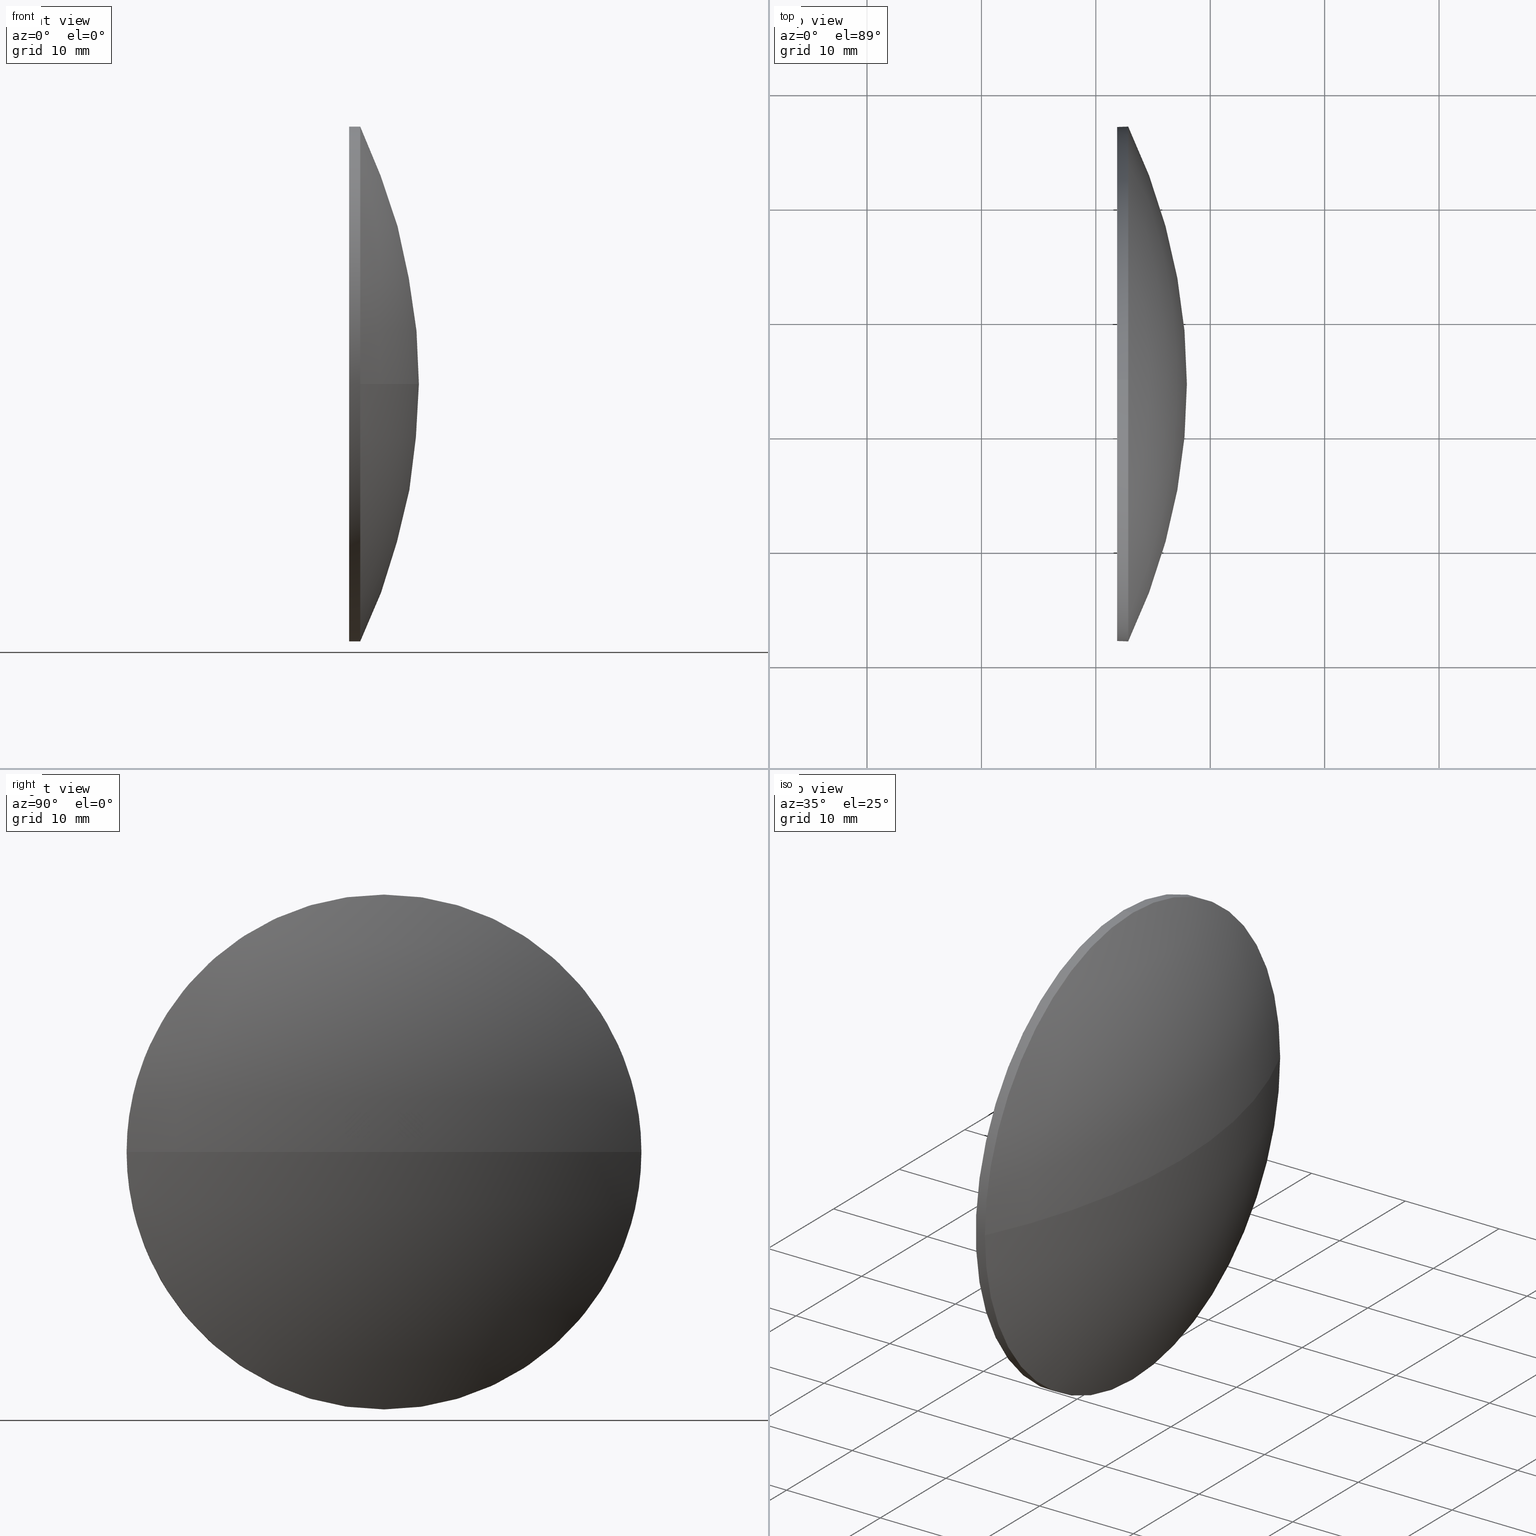
[diagram: canonical four-view strip — front | top / right | iso, engineering-drawing reading convention]
A machine part, canonical four-view strip (front | top / right | iso — engineering-drawing reading convention). The complete STEP part file that produces these views, byte-faithful:
ISO-10303-21;
HEADER;
FILE_DESCRIPTION (( 'STEP AP214' ),
    '1' );
FILE_NAME ('100236.STEP',
    '2019-05-28T06:23:38',
    ( '' ),
    ( '' ),
    'SwSTEP 2.0',
    'SolidWorks 2016',
    '' );
FILE_SCHEMA (( 'AUTOMOTIVE_DESIGN' ));
ENDSEC;

DATA;
#1 = UNCERTAINTY_MEASURE_WITH_UNIT (LENGTH_MEASURE( 1.000000000000000100E-005 ), #171, 'distance_accuracy_value', 'NONE');
#2 = CARTESIAN_POINT ( 'NONE',  ( 192.8294665386367500, -255.6056703500554500, 0.0000000000000000000 ) ) ;
#3 = PRESENTATION_LAYER_ASSIGNMENT (  '', '', ( #137 ) ) ;
#4 = DIRECTION ( 'NONE',  ( 0.0000000000000000000, 0.0000000000000000000, 1.000000000000000000 ) ) ;
#5 =( GEOMETRIC_REPRESENTATION_CONTEXT ( 3 ) GLOBAL_UNCERTAINTY_ASSIGNED_CONTEXT ( ( #11 ) ) GLOBAL_UNIT_ASSIGNED_CONTEXT ( ( #111, #87, #128 ) ) REPRESENTATION_CONTEXT ( 'NONE', 'WORKASPACE' ) );
#6 = ADVANCED_FACE ( 'NONE', ( #163 ), #118, .F. ) ;
#7 = AXIS2_PLACEMENT_3D ( 'NONE', #10, #29, #166 ) ;
#8 = SURFACE_SIDE_STYLE ('',( #68 ) ) ;
#9 = EDGE_LOOP ( 'NONE', ( #165, #107, #77, #83 ) ) ;
#10 = CARTESIAN_POINT ( 'NONE',  ( 146.0523612754788600, -255.6056703500554500, 0.0000000000000000000 ) ) ;
#11 = UNCERTAINTY_MEASURE_WITH_UNIT (LENGTH_MEASURE( 1.000000000000000100E-005 ), #111, 'distance_accuracy_value', 'NONE');
#12 =( NAMED_UNIT ( * ) SI_UNIT ( $, .STERADIAN. ) SOLID_ANGLE_UNIT ( ) );
#13 = VECTOR ( 'NONE', #97, 1000.000000000000000 ) ;
#14 = VERTEX_POINT ( 'NONE', #71 ) ;
#15 = DIRECTION ( 'NONE',  ( -1.000000000000000000, -0.0000000000000000000, -0.0000000000000000000 ) ) ;
#16 = CIRCLE ( 'NONE', #114, 22.49999999999999300 ) ;
#17 = APPLICATION_PROTOCOL_DEFINITION ( 'draft international standard', 'automotive_design', 1998, #38 ) ;
#18 = PRESENTATION_STYLE_ASSIGNMENT (( #149 ) ) ;
#19 = SHAPE_DEFINITION_REPRESENTATION ( #72, #22 ) ;
#20 = ORIENTED_EDGE ( 'NONE', *, *, #146, .F. ) ;
#21 = ADVANCED_FACE ( 'NONE', ( #49 ), #177, .T. ) ;
#22 = ADVANCED_BREP_SHAPE_REPRESENTATION ( '100236', ( #70, #56 ), #154 ) ;
#23 = STYLED_ITEM ( 'NONE', ( #18 ), #22 ) ;
#24 = VECTOR ( 'NONE', #33, 1000.000000000000000 ) ;
#25 = AXIS2_PLACEMENT_3D ( 'NONE', #158, #15, #51 ) ;
#26 = DIRECTION ( 'NONE',  ( -1.000000000000000000, -0.0000000000000000000, -0.0000000000000000000 ) ) ;
#27 = DIRECTION ( 'NONE',  ( 0.0000000000000000000, 0.0000000000000000000, -1.000000000000000000 ) ) ;
#28 = DIRECTION ( 'NONE',  ( -1.000000000000000000, -0.0000000000000000000, -0.0000000000000000000 ) ) ;
#29 = DIRECTION ( 'NONE',  ( -0.0000000000000000000, 0.0000000000000000000, 1.000000000000000000 ) ) ;
#30 = CIRCLE ( 'NONE', #129, 51.90710526315789500 ) ;
#31 = DIRECTION ( 'NONE',  ( -0.0000000000000000000, 0.0000000000000000000, -1.000000000000000000 ) ) ;
#32 = DIRECTION ( 'NONE',  ( -1.000000000000000000, -0.0000000000000000000, -0.0000000000000000000 ) ) ;
#33 = DIRECTION ( 'NONE',  ( -1.000000000000000000, -0.0000000000000000000, -0.0000000000000000000 ) ) ;
#34 = PRESENTATION_STYLE_ASSIGNMENT (( #167 ) ) ;
#35 =( NAMED_UNIT ( * ) PLANE_ANGLE_UNIT ( ) SI_UNIT ( $, .RADIAN. ) );
#36 = DIRECTION ( 'NONE',  ( 1.000000000000000000, 0.0000000000000000000, 0.0000000000000000000 ) ) ;
#37 = EDGE_LOOP ( 'NONE', ( #20, #42, #157, #136, #121 ) ) ;
#38 = APPLICATION_CONTEXT ( 'automotive_design' ) ;
#39 = SURFACE_SIDE_STYLE ('',( #64 ) ) ;
#40 = MECHANICAL_DESIGN_GEOMETRIC_PRESENTATION_REPRESENTATION (  '', ( #23 ), #5 ) ;
#41 = UNCERTAINTY_MEASURE_WITH_UNIT (LENGTH_MEASURE( 1.000000000000000100E-005 ), #186, 'distance_accuracy_value', 'NONE');
#42 = ORIENTED_EDGE ( 'NONE', *, *, #125, .T. ) ;
#43 = EDGE_CURVE ( 'NONE', #14, #102, #131, .T. ) ;
#44 = AXIS2_PLACEMENT_3D ( 'NONE', #127, #74, #62 ) ;
#45 = ORIENTED_EDGE ( 'NONE', *, *, #78, .F. ) ;
#46 = FILL_AREA_STYLE ('',( #135 ) ) ;
#47 = FILL_AREA_STYLE_COLOUR ( '', #132 ) ;
#48 = LINE ( 'NONE', #84, #24 ) ;
#49 = FACE_OUTER_BOUND ( 'NONE', #92, .T. ) ;
#50 = CARTESIAN_POINT ( 'NONE',  ( 192.8294665386367500, -255.6056703500554500, -22.49999999999999300 ) ) ;
#51 = DIRECTION ( 'NONE',  ( 0.0000000000000000000, 0.0000000000000000000, 1.000000000000000000 ) ) ;
#52 = ORIENTED_EDGE ( 'NONE', *, *, #78, .T. ) ;
#53 = APPLICATION_PROTOCOL_DEFINITION ( 'draft international standard', 'automotive_design', 1998, #66 ) ;
#54 = MECHANICAL_DESIGN_GEOMETRIC_PRESENTATION_REPRESENTATION (  '', ( #137 ), #103 ) ;
#55 = VERTEX_POINT ( 'NONE', #69 ) ;
#56 = AXIS2_PLACEMENT_3D ( 'NONE', #173, #4, #36 ) ;
#57 = CIRCLE ( 'NONE', #25, 22.49999999999999300 ) ;
#58 = CARTESIAN_POINT ( 'NONE',  ( 191.8594665386367500, -255.6056703500554500, 0.0000000000000000000 ) ) ;
#59 = ORIENTED_EDGE ( 'NONE', *, *, #155, .T. ) ;
#60 = DIRECTION ( 'NONE',  ( 1.000000000000000000, 0.0000000000000000000, 0.0000000000000000000 ) ) ;
#61 = FACE_OUTER_BOUND ( 'NONE', #37, .T. ) ;
#62 = DIRECTION ( 'NONE',  ( 0.0000000000000000000, 1.000000000000000000, 0.0000000000000000000 ) ) ;
#63 = DIRECTION ( 'NONE',  ( 0.0000000000000000000, 0.0000000000000000000, 1.000000000000000000 ) ) ;
#64 = SURFACE_STYLE_FILL_AREA ( #112 ) ;
#65 = VERTEX_POINT ( 'NONE', #139 ) ;
#66 = APPLICATION_CONTEXT ( 'automotive_design' ) ;
#67 = CIRCLE ( 'NONE', #7, 51.90710526315789500 ) ;
#68 = SURFACE_STYLE_FILL_AREA ( #46 ) ;
#69 = CARTESIAN_POINT ( 'NONE',  ( 191.8594665386367500, -255.6056703500554500, -22.49999999999999300 ) ) ;
#70 = MANIFOLD_SOLID_BREP ( '��ת1', #148 ) ;
#71 = CARTESIAN_POINT ( 'NONE',  ( 192.8294665386367500, -278.1056703500553900, -2.755455298081544000E-015 ) ) ;
#72 = PRODUCT_DEFINITION_SHAPE ( 'NONE', 'NONE',  #174 ) ;
#73 = EDGE_LOOP ( 'NONE', ( #52, #113 ) ) ;
#74 = DIRECTION ( 'NONE',  ( -0.0000000000000000000, 0.0000000000000000000, -1.000000000000000000 ) ) ;
#75 = DIRECTION ( 'NONE',  ( 0.0000000000000000000, 0.0000000000000000000, 1.000000000000000000 ) ) ;
#76 = ORIENTED_EDGE ( 'NONE', *, *, #43, .F. ) ;
#77 = ORIENTED_EDGE ( 'NONE', *, *, #125, .F. ) ;
#78 = EDGE_CURVE ( 'NONE', #159, #55, #16, .T. ) ;
#79 =( NAMED_UNIT ( * ) PLANE_ANGLE_UNIT ( ) SI_UNIT ( $, .RADIAN. ) );
#80 = ORIENTED_EDGE ( 'NONE', *, *, #99, .T. ) ;
#81 = DIRECTION ( 'NONE',  ( -1.000000000000000000, -0.0000000000000000000, -0.0000000000000000000 ) ) ;
#82 = DIRECTION ( 'NONE',  ( 0.0000000000000000000, 1.224646799147353200E-016, -1.000000000000000000 ) ) ;
#83 = ORIENTED_EDGE ( 'NONE', *, *, #119, .F. ) ;
#84 = CARTESIAN_POINT ( 'NONE',  ( 187.8163450691519100, -255.6056703500554500, -22.49999999999999300 ) ) ;
#85 = VERTEX_POINT ( 'NONE', #140 ) ;
#86 = PRODUCT_CONTEXT ( 'NONE', #66, 'mechanical' ) ;
#87 =( NAMED_UNIT ( * ) PLANE_ANGLE_UNIT ( ) SI_UNIT ( $, .RADIAN. ) );
#88 = PRODUCT ( '100236', '100236', '', ( #86 ) ) ;
#89 = PRODUCT_RELATED_PRODUCT_CATEGORY ( 'part', '', ( #88 ) ) ;
#90 = PRODUCT_DEFINITION_CONTEXT ( 'detailed design', #38, 'design' ) ;
#91 = SPHERICAL_SURFACE ( 'NONE', #44, 51.90710526315789500 ) ;
#92 = EDGE_LOOP ( 'NONE', ( #151, #161, #45, #116, #59 ) ) ;
#93 = DIRECTION ( 'NONE',  ( -1.000000000000000000, -0.0000000000000000000, -0.0000000000000000000 ) ) ;
#94 = DIRECTION ( 'NONE',  ( 0.0000000000000000000, 0.0000000000000000000, 1.000000000000000000 ) ) ;
#95 = DIRECTION ( 'NONE',  ( 0.0000000000000000000, 1.000000000000000000, 0.0000000000000000000 ) ) ;
#96 = DIRECTION ( 'NONE',  ( -1.000000000000000000, -0.0000000000000000000, -0.0000000000000000000 ) ) ;
#97 = DIRECTION ( 'NONE',  ( -1.000000000000000000, -0.0000000000000000000, -0.0000000000000000000 ) ) ;
#98 = DIRECTION ( 'NONE',  ( -1.000000000000000000, -0.0000000000000000000, -0.0000000000000000000 ) ) ;
#99 = EDGE_CURVE ( 'NONE', #65, #85, #67, .T. ) ;
#100 = COLOUR_RGB ( '',1.000000000000000000, 1.000000000000000000, 1.000000000000000000 ) ;
#101 = ORIENTED_EDGE ( 'NONE', *, *, #155, .F. ) ;
#102 = VERTEX_POINT ( 'NONE', #122 ) ;
#103 =( GEOMETRIC_REPRESENTATION_CONTEXT ( 3 ) GLOBAL_UNCERTAINTY_ASSIGNED_CONTEXT ( ( #1 ) ) GLOBAL_UNIT_ASSIGNED_CONTEXT ( ( #171, #79, #181 ) ) REPRESENTATION_CONTEXT ( 'NONE', 'WORKASPACE' ) );
#104 = AXIS2_PLACEMENT_3D ( 'NONE', #147, #96, #75 ) ;
#105 = CARTESIAN_POINT ( 'NONE',  ( 191.8594665386367500, -255.6056703500554500, 0.0000000000000000000 ) ) ;
#106 = DIRECTION ( 'NONE',  ( 0.0000000000000000000, 0.0000000000000000000, 1.000000000000000000 ) ) ;
#107 = ORIENTED_EDGE ( 'NONE', *, *, #182, .T. ) ;
#108 = CARTESIAN_POINT ( 'NONE',  ( 146.0523612754788600, -255.6056703500554500, 0.0000000000000000000 ) ) ;
#109 = LINE ( 'NONE', #123, #13 ) ;
#110 = DIRECTION ( 'NONE',  ( 0.0000000000000000000, 0.0000000000000000000, 1.000000000000000000 ) ) ;
#111 =( LENGTH_UNIT ( ) NAMED_UNIT ( * ) SI_UNIT ( .MILLI., .METRE. ) );
#112 = FILL_AREA_STYLE ('',( #47 ) ) ;
#113 = ORIENTED_EDGE ( 'NONE', *, *, #130, .T. ) ;
#114 = AXIS2_PLACEMENT_3D ( 'NONE', #105, #26, #106 ) ;
#115 = PRODUCT_DEFINITION_FORMATION_WITH_SPECIFIED_SOURCE ( '�κ�', '', #88, .NOT_KNOWN. ) ;
#116 = ORIENTED_EDGE ( 'NONE', *, *, #176, .F. ) ;
#117 = ADVANCED_FACE ( 'NONE', ( #61 ), #134, .T. ) ;
#118 = PLANE ( 'NONE',  #152 ) ;
#119 = EDGE_CURVE ( 'NONE', #85, #169, #150, .T. ) ;
#120 = FACE_OUTER_BOUND ( 'NONE', #9, .T. ) ;
#121 = ORIENTED_EDGE ( 'NONE', *, *, #130, .F. ) ;
#122 = CARTESIAN_POINT ( 'NONE',  ( 192.8294665386367500, -255.6056703500554500, 22.49999999999999300 ) ) ;
#123 = CARTESIAN_POINT ( 'NONE',  ( 187.8163450691519100, -255.6056703500554500, 22.49999999999999300 ) ) ;
#124 = DIRECTION ( 'NONE',  ( 0.0000000000000000000, 1.000000000000000000, 1.224646799147353200E-016 ) ) ;
#125 = EDGE_CURVE ( 'NONE', #169, #14, #164, .T. ) ;
#126 = AXIS2_PLACEMENT_3D ( 'NONE', #185, #32, #63 ) ;
#127 = CARTESIAN_POINT ( 'NONE',  ( 146.0523612754788600, -255.6056703500554500, 0.0000000000000000000 ) ) ;
#128 =( NAMED_UNIT ( * ) SI_UNIT ( $, .STERADIAN. ) SOLID_ANGLE_UNIT ( ) );
#129 = AXIS2_PLACEMENT_3D ( 'NONE', #172, #82, #124 ) ;
#130 = EDGE_CURVE ( 'NONE', #55, #159, #57, .T. ) ;
#131 = CIRCLE ( 'NONE', #160, 22.49999999999999300 ) ;
#132 = COLOUR_RGB ( '',1.000000000000000000, 1.000000000000000000, 1.000000000000000000 ) ;
#133 = ADVANCED_FACE ( 'NONE', ( #120 ), #178, .T. ) ;
#134 = CYLINDRICAL_SURFACE ( 'NONE', #144, 22.49999999999999300 ) ;
#135 = FILL_AREA_STYLE_COLOUR ( '', #100 ) ;
#136 = ORIENTED_EDGE ( 'NONE', *, *, #176, .T. ) ;
#137 = STYLED_ITEM ( 'NONE', ( #34 ), #70 ) ;
#138 = AXIS2_PLACEMENT_3D ( 'NONE', #108, #31, #95 ) ;
#139 = CARTESIAN_POINT ( 'NONE',  ( 197.9594665386367500, -255.6056703500554500, 0.0000000000000000000 ) ) ;
#140 = CARTESIAN_POINT ( 'NONE',  ( 192.8294665386367500, -233.1056703500554500, 0.0000000000000000000 ) ) ;
#141 = CARTESIAN_POINT ( 'NONE',  ( 187.8163450691519100, -255.6056703500554500, 0.0000000000000000000 ) ) ;
#142 = CARTESIAN_POINT ( 'NONE',  ( 192.8294665386367500, -255.6056703500554500, 0.0000000000000000000 ) ) ;
#143 = CARTESIAN_POINT ( 'NONE',  ( 191.8594665386367500, -255.6056703500554500, 22.49999999999999300 ) ) ;
#144 = AXIS2_PLACEMENT_3D ( 'NONE', #141, #93, #184 ) ;
#145 = ORIENTED_EDGE ( 'NONE', *, *, #182, .F. ) ;
#146 = EDGE_CURVE ( 'NONE', #169, #55, #48, .T. ) ;
#147 = CARTESIAN_POINT ( 'NONE',  ( 192.8294665386367500, -255.6056703500554500, 0.0000000000000000000 ) ) ;
#148 = CLOSED_SHELL ( 'NONE', ( #21, #133, #179, #117, #6 ) ) ;
#149 = SURFACE_STYLE_USAGE ( .BOTH. , #39 ) ;
#150 = CIRCLE ( 'NONE', #104, 22.49999999999999300 ) ;
#151 = ORIENTED_EDGE ( 'NONE', *, *, #119, .T. ) ;
#152 = AXIS2_PLACEMENT_3D ( 'NONE', #58, #60, #27 ) ;
#153 = EDGE_LOOP ( 'NONE', ( #145, #80, #101, #76 ) ) ;
#154 =( GEOMETRIC_REPRESENTATION_CONTEXT ( 3 ) GLOBAL_UNCERTAINTY_ASSIGNED_CONTEXT ( ( #41 ) ) GLOBAL_UNIT_ASSIGNED_CONTEXT ( ( #186, #35, #12 ) ) REPRESENTATION_CONTEXT ( 'NONE', 'WORKASPACE' ) );
#155 = EDGE_CURVE ( 'NONE', #102, #85, #175, .T. ) ;
#156 = CARTESIAN_POINT ( 'NONE',  ( 187.8163450691519100, -255.6056703500554500, 0.0000000000000000000 ) ) ;
#157 = ORIENTED_EDGE ( 'NONE', *, *, #43, .T. ) ;
#158 = CARTESIAN_POINT ( 'NONE',  ( 191.8594665386367500, -255.6056703500554500, 0.0000000000000000000 ) ) ;
#159 = VERTEX_POINT ( 'NONE', #143 ) ;
#160 = AXIS2_PLACEMENT_3D ( 'NONE', #142, #81, #183 ) ;
#161 = ORIENTED_EDGE ( 'NONE', *, *, #146, .T. ) ;
#162 = FACE_OUTER_BOUND ( 'NONE', #153, .T. ) ;
#163 = FACE_OUTER_BOUND ( 'NONE', #73, .T. ) ;
#164 = CIRCLE ( 'NONE', #126, 22.49999999999999300 ) ;
#165 = ORIENTED_EDGE ( 'NONE', *, *, #99, .F. ) ;
#166 = DIRECTION ( 'NONE',  ( 1.000000000000000000, 0.0000000000000000000, 0.0000000000000000000 ) ) ;
#167 = SURFACE_STYLE_USAGE ( .BOTH. , #8 ) ;
#168 = AXIS2_PLACEMENT_3D ( 'NONE', #156, #28, #94 ) ;
#169 = VERTEX_POINT ( 'NONE', #50 ) ;
#170 = AXIS2_PLACEMENT_3D ( 'NONE', #2, #98, #110 ) ;
#171 =( LENGTH_UNIT ( ) NAMED_UNIT ( * ) SI_UNIT ( .MILLI., .METRE. ) );
#172 = CARTESIAN_POINT ( 'NONE',  ( 146.0523612754788600, -255.6056703500554500, 0.0000000000000000000 ) ) ;
#173 = CARTESIAN_POINT ( 'NONE',  ( 0.0000000000000000000, 0.0000000000000000000, 0.0000000000000000000 ) ) ;
#174 = PRODUCT_DEFINITION ( 'δ֪', '', #115, #90 ) ;
#175 = CIRCLE ( 'NONE', #170, 22.49999999999999300 ) ;
#176 = EDGE_CURVE ( 'NONE', #102, #159, #109, .T. ) ;
#177 = CYLINDRICAL_SURFACE ( 'NONE', #168, 22.49999999999999300 ) ;
#178 = SPHERICAL_SURFACE ( 'NONE', #138, 51.90710526315789500 ) ;
#179 = ADVANCED_FACE ( 'NONE', ( #162 ), #91, .T. ) ;
#180 = PRESENTATION_LAYER_ASSIGNMENT (  '', '', ( #23 ) ) ;
#181 =( NAMED_UNIT ( * ) SI_UNIT ( $, .STERADIAN. ) SOLID_ANGLE_UNIT ( ) );
#182 = EDGE_CURVE ( 'NONE', #65, #14, #30, .T. ) ;
#183 = DIRECTION ( 'NONE',  ( 0.0000000000000000000, 0.0000000000000000000, 1.000000000000000000 ) ) ;
#184 = DIRECTION ( 'NONE',  ( 0.0000000000000000000, 0.0000000000000000000, 1.000000000000000000 ) ) ;
#185 = CARTESIAN_POINT ( 'NONE',  ( 192.8294665386367500, -255.6056703500554500, 0.0000000000000000000 ) ) ;
#186 =( LENGTH_UNIT ( ) NAMED_UNIT ( * ) SI_UNIT ( .MILLI., .METRE. ) );
ENDSEC;
END-ISO-10303-21;
